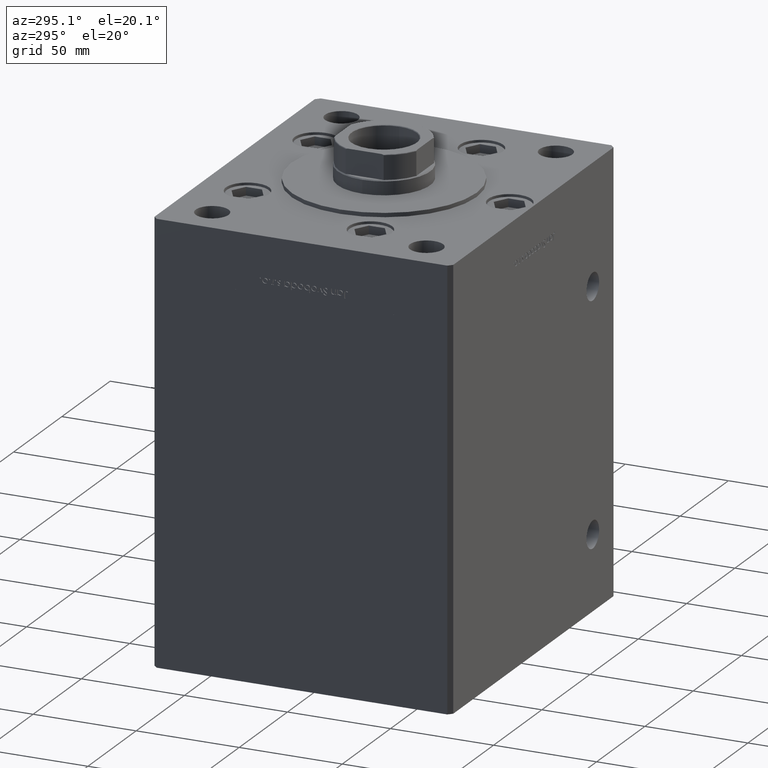
[diagram: clean part render]
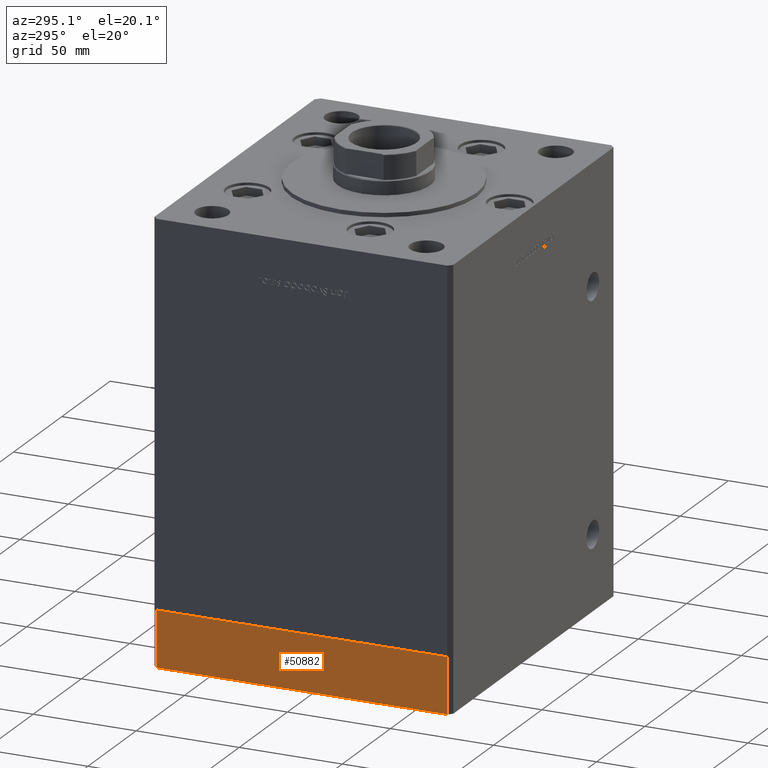
[diagram: same view with one face highlighted and labeled with its STEP entity id]
A machine part, auxiliary view. The second image highlights one B-rep face of the part: STEP entity #50882.
In plain terms, the highlighted planar face has unit normal (-1, 0, 0).
Its self-contained STEP definition (entity closure, byte-faithful):
#946 = LINE ( 'NONE', #36789, #51878 ) ;
#2188 = DIRECTION ( 'NONE',  ( -5.905441620346577238E-16, 1.000000000000000000, 0.000000000000000000 ) ) ;
#2819 = EDGE_CURVE ( 'NONE', #20738, #35530, #946, .T. ) ;
#3602 = VECTOR ( 'NONE', #16967, 1000.000000000000000 ) ;
#4419 = VERTEX_POINT ( 'NONE', #23036 ) ;
#5190 = AXIS2_PLACEMENT_3D ( 'NONE', #25676, #30399, #2188 ) ;
#6831 = DIRECTION ( 'NONE',  ( 0.000000000000000000, 0.000000000000000000, 1.000000000000000000 ) ) ;
#9613 = CARTESIAN_POINT ( 'NONE',  ( 84.99999999999994316, 70.50000000000000000, 0.000000000000000000 ) ) ;
#9841 = EDGE_LOOP ( 'NONE', ( #18120, #21655, #27911, #42004 ) ) ;
#12001 = EDGE_CURVE ( 'NONE', #4419, #37221, #45007, .T. ) ;
#16706 = CARTESIAN_POINT ( 'NONE',  ( 85.00000000000001421, -70.50000000000000000, -27.00000000000000000 ) ) ;
#16967 = DIRECTION ( 'NONE',  ( 0.000000000000000000, 0.000000000000000000, 1.000000000000000000 ) ) ;
#18120 = ORIENTED_EDGE ( 'NONE', *, *, #2819, .F. ) ;
#19536 = EDGE_CURVE ( 'NONE', #4419, #20738, #48591, .T. ) ;
#20738 = VERTEX_POINT ( 'NONE', #25034 ) ;
#20751 = DIRECTION ( 'NONE',  ( -5.905441620346577238E-16, 1.000000000000000000, 0.000000000000000000 ) ) ;
#21655 = ORIENTED_EDGE ( 'NONE', *, *, #19536, .F. ) ;
#21730 = PLANE ( 'NONE',  #5190 ) ;
#23036 = CARTESIAN_POINT ( 'NONE',  ( 85.00000000000001421, -70.50000000000000000, -27.00000000000000000 ) ) ;
#23552 = CARTESIAN_POINT ( 'NONE',  ( 84.99999999999994316, 70.50000000000000000, -27.00000000000000000 ) ) ;
#25034 = CARTESIAN_POINT ( 'NONE',  ( 85.00000000000001421, -70.50000000000000000, 0.000000000000000000 ) ) ;
#25676 = CARTESIAN_POINT ( 'NONE',  ( 85.00000000000001421, -70.50000000000000000, -27.00000000000000000 ) ) ;
#27796 = VECTOR ( 'NONE', #28204, 1000.000000000000000 ) ;
#27911 = ORIENTED_EDGE ( 'NONE', *, *, #12001, .T. ) ;
#28204 = DIRECTION ( 'NONE',  ( -5.905441620346577238E-16, 1.000000000000000000, 0.000000000000000000 ) ) ;
#30399 = DIRECTION ( 'NONE',  ( 1.000000000000000000, 5.905441620346577238E-16, -0.000000000000000000 ) ) ;
#30662 = FACE_OUTER_BOUND ( 'NONE', #9841, .T. ) ;
#31199 = EDGE_CURVE ( 'NONE', #37221, #35530, #31351, .T. ) ;
#31351 = LINE ( 'NONE', #46876, #36650 ) ;
#35530 = VERTEX_POINT ( 'NONE', #9613 ) ;
#36597 = CARTESIAN_POINT ( 'NONE',  ( 85.00000000000001421, -70.50000000000000000, -27.00000000000000000 ) ) ;
#36650 = VECTOR ( 'NONE', #6831, 1000.000000000000000 ) ;
#36789 = CARTESIAN_POINT ( 'NONE',  ( 85.00000000000001421, -70.50000000000000000, 0.000000000000000000 ) ) ;
#37221 = VERTEX_POINT ( 'NONE', #23552 ) ;
#42004 = ORIENTED_EDGE ( 'NONE', *, *, #31199, .T. ) ;
#45007 = LINE ( 'NONE', #36597, #27796 ) ;
#46876 = CARTESIAN_POINT ( 'NONE',  ( 84.99999999999994316, 70.50000000000000000, -27.00000000000000000 ) ) ;
#48591 = LINE ( 'NONE', #16706, #3602 ) ;
#50882 = ADVANCED_FACE ( 'NONE', ( #30662 ), #21730, .T. ) ;
#51878 = VECTOR ( 'NONE', #20751, 1000.000000000000000 ) ;